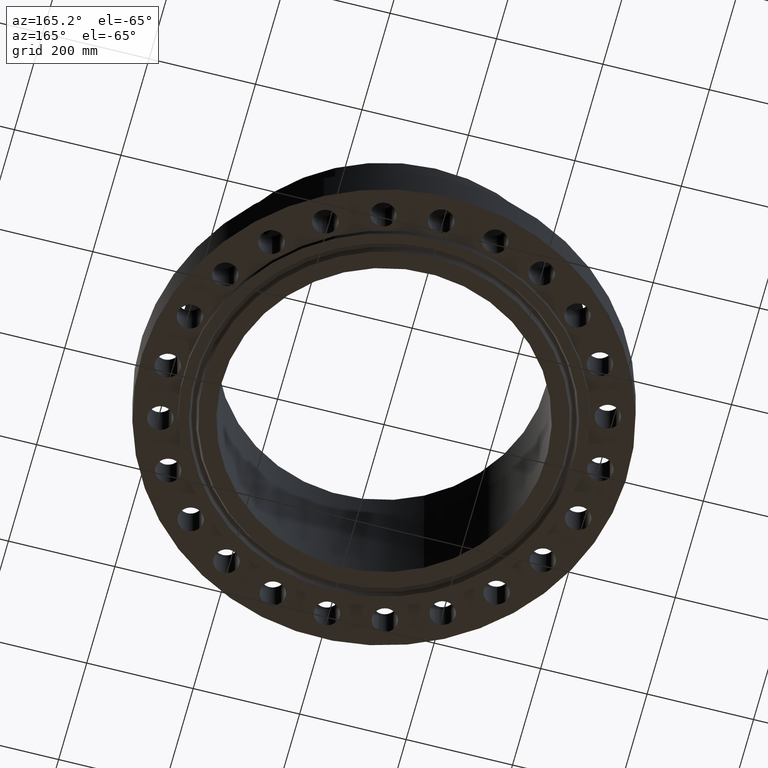
[diagram: clean part render]
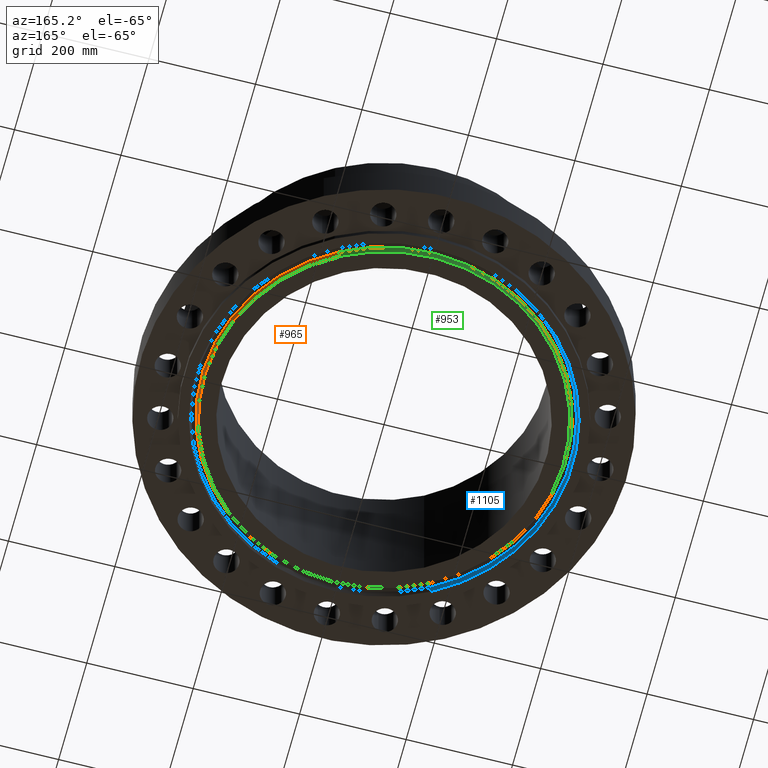
[diagram: same view with three faces highlighted in distinct colors, each labeled with its STEP entity id]
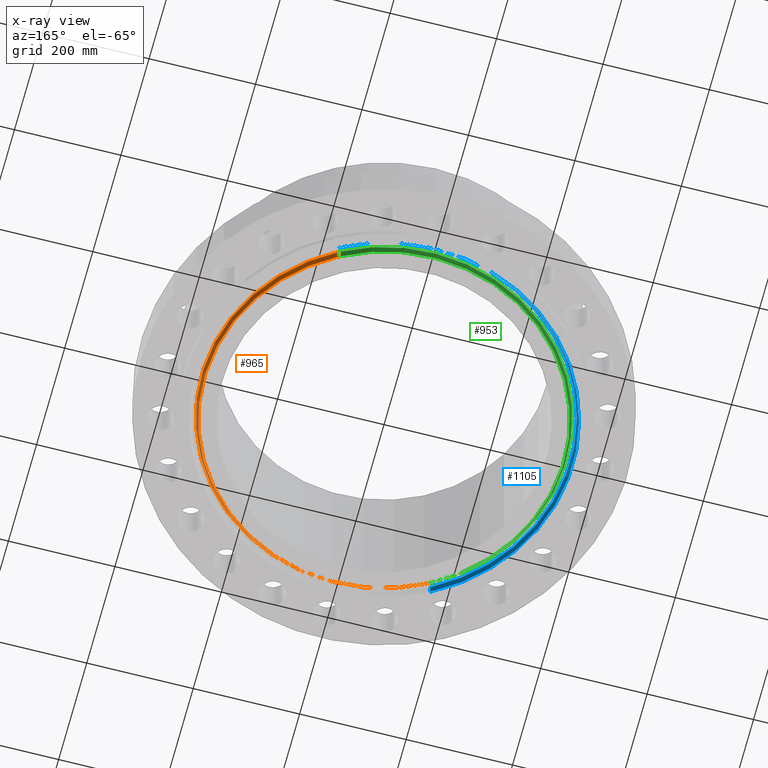
[diagram: x-ray of the same camera — body ghosted, the three highlighted faces saturated]
A machine part, auxiliary view with three faces highlighted in distinct colors.
The next image is the same camera in x-ray (body ghosted, the three faces saturated) — at least one of them is partly hidden behind the body in this view.
Their STEP definitions:

[orange] entity #965 — the highlighted conical surface has half-angle 23 deg.
#911=AXIS2_PLACEMENT_3D('Circle Axis2P3D',#909,#910,$) ;
#926=AXIS2_PLACEMENT_3D('Cone Axis2P3D',#923,#924,#925) ;
#956=AXIS2_PLACEMENT_3D('Circle Axis2P3D',#954,#955,$) ;
#904=CARTESIAN_POINT('Vertex',(-6.37492138685,-11.6692153255,-0.438000000002)) ;
#906=CARTESIAN_POINT('Vertex',(6.37492138685,11.6692153255,-0.438000000002)) ;
#909=CARTESIAN_POINT('Axis2P3D Location',(0.,0.,-0.438000000002)) ;
#923=CARTESIAN_POINT('Axis2P3D Location',(0.,0.,-0.438000000002)) ;
#928=CARTESIAN_POINT('Line Origine',(-6.41558313376,-11.743646154,-0.238191969454)) ;
#932=CARTESIAN_POINT('Vertex',(-6.45624488067,-11.8180769824,-0.0383839389053)) ;
#939=CARTESIAN_POINT('Vertex',(6.45624488067,11.8180769824,-0.0383839389053)) ;
#942=CARTESIAN_POINT('Line Origine',(6.41558313376,11.743646154,-0.238191969454)) ;
#954=CARTESIAN_POINT('Axis2P3D Location',(0.,0.,-0.0383839389053)) ;
#910=DIRECTION('Axis2P3D Direction',(0.,0.,-0.0393700787402)) ;
#924=DIRECTION('Axis2P3D Direction',(-0.,-0.,0.0393700787402)) ;
#925=DIRECTION('Axis2P3D XDirection',(-0.0188750212049,-0.0345504945626,0.)) ;
#929=DIRECTION('Vector Direction',(-0.00737505833565,-0.0134999537303,0.0362403485611)) ;
#943=DIRECTION('Vector Direction',(0.00737505833565,0.0134999537303,0.0362403485611)) ;
#955=DIRECTION('Axis2P3D Direction',(-0.,0.,0.0393700787402)) ;
#930=VECTOR('Line Direction',#929,0.0393700787402) ;
#944=VECTOR('Line Direction',#943,0.0393700787402) ;
#960=ORIENTED_EDGE('',*,*,#913,.F.) ;
#961=ORIENTED_EDGE('',*,*,#946,.T.) ;
#962=ORIENTED_EDGE('',*,*,#958,.T.) ;
#963=ORIENTED_EDGE('',*,*,#934,.F.) ;
#965=ADVANCED_FACE('PartBody',(#964),#927,.T.) ;
#912=CIRCLE('generated circle',#911,13.2970000001) ;
#957=CIRCLE('generated circle',#956,13.4666269541) ;
#927=CONICAL_SURFACE('Cone',#926,13.2970000001,0.401425727959) ;
#913=EDGE_CURVE('',#907,#905,#912,.T.) ;
#934=EDGE_CURVE('',#905,#933,#931,.T.) ;
#946=EDGE_CURVE('',#907,#940,#945,.T.) ;
#958=EDGE_CURVE('',#940,#933,#957,.F.) ;
#959=EDGE_LOOP('',(#960,#961,#962,#963)) ;
#964=FACE_OUTER_BOUND('',#959,.T.) ;
#931=LINE('Line',#928,#930) ;
#945=LINE('Line',#942,#944) ;
#905=VERTEX_POINT('',#904) ;
#907=VERTEX_POINT('',#906) ;
#933=VERTEX_POINT('',#932) ;
#940=VERTEX_POINT('',#939) ;

[blue] entity #1105 — the highlighted conical surface has half-angle 23 deg.
#1046=AXIS2_PLACEMENT_3D('Circle Axis2P3D',#1044,#1045,$) ;
#1078=AXIS2_PLACEMENT_3D('Cone Axis2P3D',#1075,#1076,#1077) ;
#1089=AXIS2_PLACEMENT_3D('Circle Axis2P3D',#1087,#1088,$) ;
#1041=CARTESIAN_POINT('Vertex',(-6.60810104635,-12.0960478292,-0.0383839389053)) ;
#1044=CARTESIAN_POINT('Axis2P3D Location',(0.,0.,-0.0383839389053)) ;
#1048=CARTESIAN_POINT('Vertex',(6.60810104635,12.0960478292,-0.0383839389053)) ;
#1075=CARTESIAN_POINT('Axis2P3D Location',(0.,0.,-0.0383839389053)) ;
#1080=CARTESIAN_POINT('Line Origine',(-6.64876279326,-12.1704786576,-0.238191969454)) ;
#1084=CARTESIAN_POINT('Vertex',(-6.68942454017,-12.2449094861,-0.438000000002)) ;
#1087=CARTESIAN_POINT('Axis2P3D Location',(0.,0.,-0.438000000002)) ;
#1091=CARTESIAN_POINT('Vertex',(6.68942454017,12.2449094861,-0.438000000002)) ;
#1094=CARTESIAN_POINT('Line Origine',(6.64876279326,12.1704786576,-0.238191969454)) ;
#1045=DIRECTION('Axis2P3D Direction',(0.,0.,-0.0393700787402)) ;
#1076=DIRECTION('Axis2P3D Direction',(0.,0.,-0.0393700787402)) ;
#1077=DIRECTION('Axis2P3D XDirection',(0.0188750212049,0.0345504945626,0.)) ;
#1081=DIRECTION('Vector Direction',(-0.00737505833565,-0.0134999537303,-0.0362403485611)) ;
#1088=DIRECTION('Axis2P3D Direction',(0.,0.,-0.0393700787402)) ;
#1095=DIRECTION('Vector Direction',(0.00737505833565,0.0134999537303,-0.0362403485611)) ;
#1082=VECTOR('Line Direction',#1081,0.0393700787402) ;
#1096=VECTOR('Line Direction',#1095,0.0393700787402) ;
#1100=ORIENTED_EDGE('',*,*,#1050,.F.) ;
#1101=ORIENTED_EDGE('',*,*,#1086,.T.) ;
#1102=ORIENTED_EDGE('',*,*,#1093,.T.) ;
#1103=ORIENTED_EDGE('',*,*,#1098,.F.) ;
#1105=ADVANCED_FACE('PartBody',(#1104),#1079,.F.) ;
#1047=CIRCLE('generated circle',#1046,13.783373046) ;
#1090=CIRCLE('generated circle',#1089,13.9530000001) ;
#1079=CONICAL_SURFACE('Cone',#1078,13.783373046,0.401425727959) ;
#1050=EDGE_CURVE('',#1042,#1049,#1047,.T.) ;
#1086=EDGE_CURVE('',#1042,#1085,#1083,.T.) ;
#1093=EDGE_CURVE('',#1085,#1092,#1090,.T.) ;
#1098=EDGE_CURVE('',#1049,#1092,#1097,.T.) ;
#1099=EDGE_LOOP('',(#1100,#1101,#1102,#1103)) ;
#1104=FACE_OUTER_BOUND('',#1099,.T.) ;
#1083=LINE('Line',#1080,#1082) ;
#1097=LINE('Line',#1094,#1096) ;
#1042=VERTEX_POINT('',#1041) ;
#1049=VERTEX_POINT('',#1048) ;
#1085=VERTEX_POINT('',#1084) ;
#1092=VERTEX_POINT('',#1091) ;

[green] entity #953 — the highlighted conical surface has half-angle 23 deg.
#902=AXIS2_PLACEMENT_3D('Circle Axis2P3D',#900,#901,$) ;
#926=AXIS2_PLACEMENT_3D('Cone Axis2P3D',#923,#924,#925) ;
#937=AXIS2_PLACEMENT_3D('Circle Axis2P3D',#935,#936,$) ;
#900=CARTESIAN_POINT('Axis2P3D Location',(0.,0.,-0.438000000002)) ;
#904=CARTESIAN_POINT('Vertex',(-6.37492138685,-11.6692153255,-0.438000000002)) ;
#906=CARTESIAN_POINT('Vertex',(6.37492138685,11.6692153255,-0.438000000002)) ;
#923=CARTESIAN_POINT('Axis2P3D Location',(0.,0.,-0.438000000002)) ;
#928=CARTESIAN_POINT('Line Origine',(-6.41558313376,-11.743646154,-0.238191969454)) ;
#932=CARTESIAN_POINT('Vertex',(-6.45624488067,-11.8180769824,-0.0383839389053)) ;
#935=CARTESIAN_POINT('Axis2P3D Location',(0.,0.,-0.0383839389053)) ;
#939=CARTESIAN_POINT('Vertex',(6.45624488067,11.8180769824,-0.0383839389053)) ;
#942=CARTESIAN_POINT('Line Origine',(6.41558313376,11.743646154,-0.238191969454)) ;
#901=DIRECTION('Axis2P3D Direction',(0.,0.,-0.0393700787402)) ;
#924=DIRECTION('Axis2P3D Direction',(-0.,-0.,0.0393700787402)) ;
#925=DIRECTION('Axis2P3D XDirection',(-0.0188750212049,-0.0345504945626,0.)) ;
#929=DIRECTION('Vector Direction',(-0.00737505833565,-0.0134999537303,0.0362403485611)) ;
#936=DIRECTION('Axis2P3D Direction',(-0.,0.,0.0393700787402)) ;
#943=DIRECTION('Vector Direction',(0.00737505833565,0.0134999537303,0.0362403485611)) ;
#930=VECTOR('Line Direction',#929,0.0393700787402) ;
#944=VECTOR('Line Direction',#943,0.0393700787402) ;
#948=ORIENTED_EDGE('',*,*,#908,.F.) ;
#949=ORIENTED_EDGE('',*,*,#934,.T.) ;
#950=ORIENTED_EDGE('',*,*,#941,.T.) ;
#951=ORIENTED_EDGE('',*,*,#946,.F.) ;
#953=ADVANCED_FACE('PartBody',(#952),#927,.T.) ;
#903=CIRCLE('generated circle',#902,13.2970000001) ;
#938=CIRCLE('generated circle',#937,13.4666269541) ;
#927=CONICAL_SURFACE('Cone',#926,13.2970000001,0.401425727959) ;
#908=EDGE_CURVE('',#905,#907,#903,.T.) ;
#934=EDGE_CURVE('',#905,#933,#931,.T.) ;
#941=EDGE_CURVE('',#933,#940,#938,.F.) ;
#946=EDGE_CURVE('',#907,#940,#945,.T.) ;
#947=EDGE_LOOP('',(#948,#949,#950,#951)) ;
#952=FACE_OUTER_BOUND('',#947,.T.) ;
#931=LINE('Line',#928,#930) ;
#945=LINE('Line',#942,#944) ;
#905=VERTEX_POINT('',#904) ;
#907=VERTEX_POINT('',#906) ;
#933=VERTEX_POINT('',#932) ;
#940=VERTEX_POINT('',#939) ;